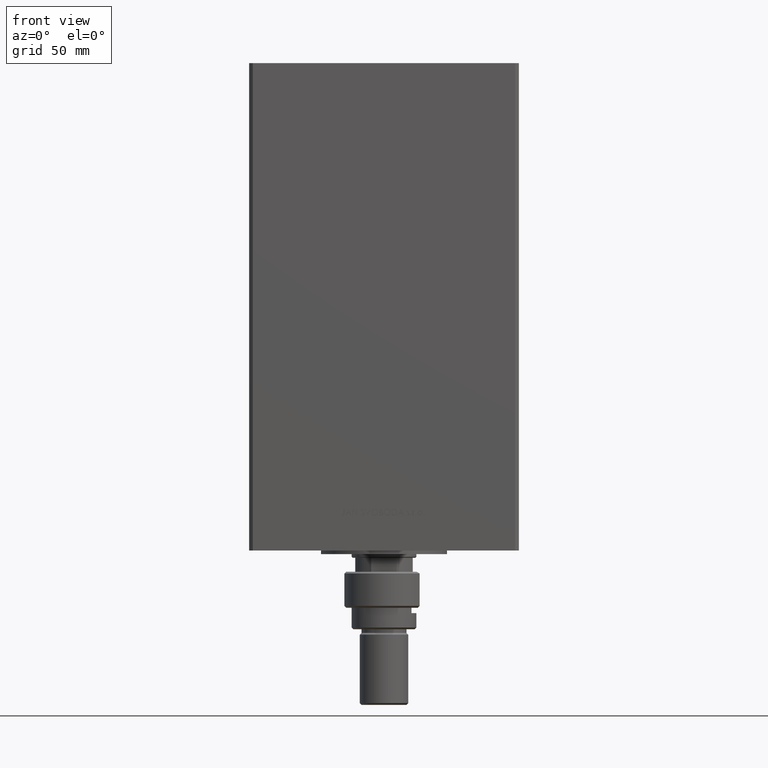
[diagram: clean part render]
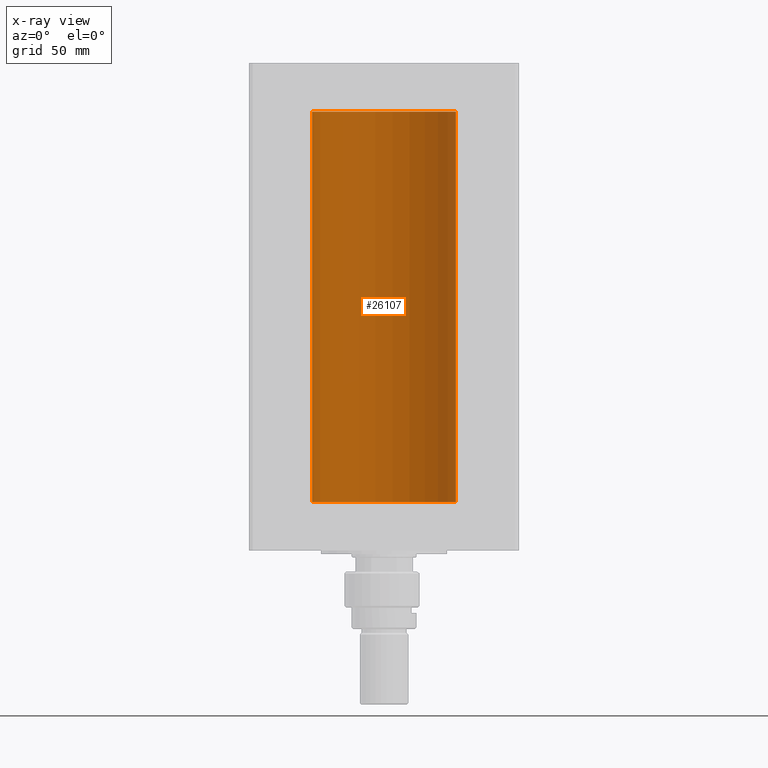
[diagram: x-ray — body ghosted, one internal face saturated and labeled with its STEP entity id]
A machine part, front view, then the same camera in x-ray: the body is ghosted and one INTERNAL B-rep face — a face not visible from any outside direction — is saturated and labeled: STEP entity #26107.
In plain terms, the highlighted cylindrical surface (partial cylindrical patch) has radius 40 mm, axis along (-0, -0, -1).
Its self-contained STEP definition (entity closure, byte-faithful):
#650 = VERTEX_POINT ( 'NONE', #33018 ) ;
#2047 = AXIS2_PLACEMENT_3D ( 'NONE', #32053, #5191, #29504 ) ;
#2346 = DIRECTION ( 'NONE',  ( -0.000000000000000000, -0.000000000000000000, -1.000000000000000000 ) ) ;
#4781 = ORIENTED_EDGE ( 'NONE', *, *, #12415, .T. ) ;
#5191 = DIRECTION ( 'NONE',  ( -0.000000000000000000, -0.000000000000000000, -1.000000000000000000 ) ) ;
#5278 = VERTEX_POINT ( 'NONE', #45474 ) ;
#11424 = AXIS2_PLACEMENT_3D ( 'NONE', #46496, #33410, #48617 ) ;
#12415 = EDGE_CURVE ( 'NONE', #40690, #650, #20310, .T. ) ;
#14609 = AXIS2_PLACEMENT_3D ( 'NONE', #20385, #35846, #16578 ) ;
#15591 = ORIENTED_EDGE ( 'NONE', *, *, #31434, .F. ) ;
#15836 = ORIENTED_EDGE ( 'NONE', *, *, #43039, .F. ) ;
#16578 = DIRECTION ( 'NONE',  ( 1.000000000000000000, 0.000000000000000000, 0.000000000000000000 ) ) ;
#16585 = FACE_OUTER_BOUND ( 'NONE', #19911, .T. ) ;
#19911 = EDGE_LOOP ( 'NONE', ( #15591, #4781, #29941, #15836 ) ) ;
#19957 = CARTESIAN_POINT ( 'NONE',  ( 40.00000000000000000, 4.898587196589413026E-15, 217.0000000000000000 ) ) ;
#20153 = VERTEX_POINT ( 'NONE', #43319 ) ;
#20310 = CIRCLE ( 'NONE', #14609, 40.00000000000000000 ) ;
#20385 = CARTESIAN_POINT ( 'NONE',  ( 0.000000000000000000, 0.000000000000000000, 217.0000000000000000 ) ) ;
#21531 = CARTESIAN_POINT ( 'NONE',  ( -40.00000000000000000, 0.000000000000000000, 217.0000000000000000 ) ) ;
#22440 = EDGE_CURVE ( 'NONE', #650, #20153, #32696, .T. ) ;
#24827 = DIRECTION ( 'NONE',  ( -0.000000000000000000, -0.000000000000000000, -1.000000000000000000 ) ) ;
#26107 = ADVANCED_FACE ( 'NONE', ( #16585 ), #39916, .F. ) ;
#29461 = CARTESIAN_POINT ( 'NONE',  ( 40.00000000000000000, 4.898587196589413026E-15, 217.0000000000000000 ) ) ;
#29504 = DIRECTION ( 'NONE',  ( -1.000000000000000000, 0.000000000000000000, 0.000000000000000000 ) ) ;
#29700 = LINE ( 'NONE', #29461, #45896 ) ;
#29941 = ORIENTED_EDGE ( 'NONE', *, *, #22440, .T. ) ;
#31434 = EDGE_CURVE ( 'NONE', #40690, #5278, #29700, .T. ) ;
#32053 = CARTESIAN_POINT ( 'NONE',  ( 0.000000000000000000, 0.000000000000000000, 217.0000000000000000 ) ) ;
#32696 = LINE ( 'NONE', #21531, #43160 ) ;
#33018 = CARTESIAN_POINT ( 'NONE',  ( -40.00000000000000000, 0.000000000000000000, 217.0000000000000000 ) ) ;
#33410 = DIRECTION ( 'NONE',  ( -0.000000000000000000, 0.000000000000000000, 1.000000000000000000 ) ) ;
#35846 = DIRECTION ( 'NONE',  ( -0.000000000000000000, 0.000000000000000000, 1.000000000000000000 ) ) ;
#39779 = CIRCLE ( 'NONE', #11424, 40.00000000000000000 ) ;
#39916 = CYLINDRICAL_SURFACE ( 'NONE', #2047, 40.00000000000000000 ) ;
#40690 = VERTEX_POINT ( 'NONE', #19957 ) ;
#43039 = EDGE_CURVE ( 'NONE', #5278, #20153, #39779, .T. ) ;
#43160 = VECTOR ( 'NONE', #24827, 1000.000000000000000 ) ;
#43319 = CARTESIAN_POINT ( 'NONE',  ( -40.00000000000000000, 0.000000000000000000, 0.000000000000000000 ) ) ;
#45474 = CARTESIAN_POINT ( 'NONE',  ( 40.00000000000000000, 4.898587196589413026E-15, 0.000000000000000000 ) ) ;
#45896 = VECTOR ( 'NONE', #2346, 1000.000000000000000 ) ;
#46496 = CARTESIAN_POINT ( 'NONE',  ( 0.000000000000000000, 0.000000000000000000, 0.000000000000000000 ) ) ;
#48617 = DIRECTION ( 'NONE',  ( 1.000000000000000000, 0.000000000000000000, 0.000000000000000000 ) ) ;